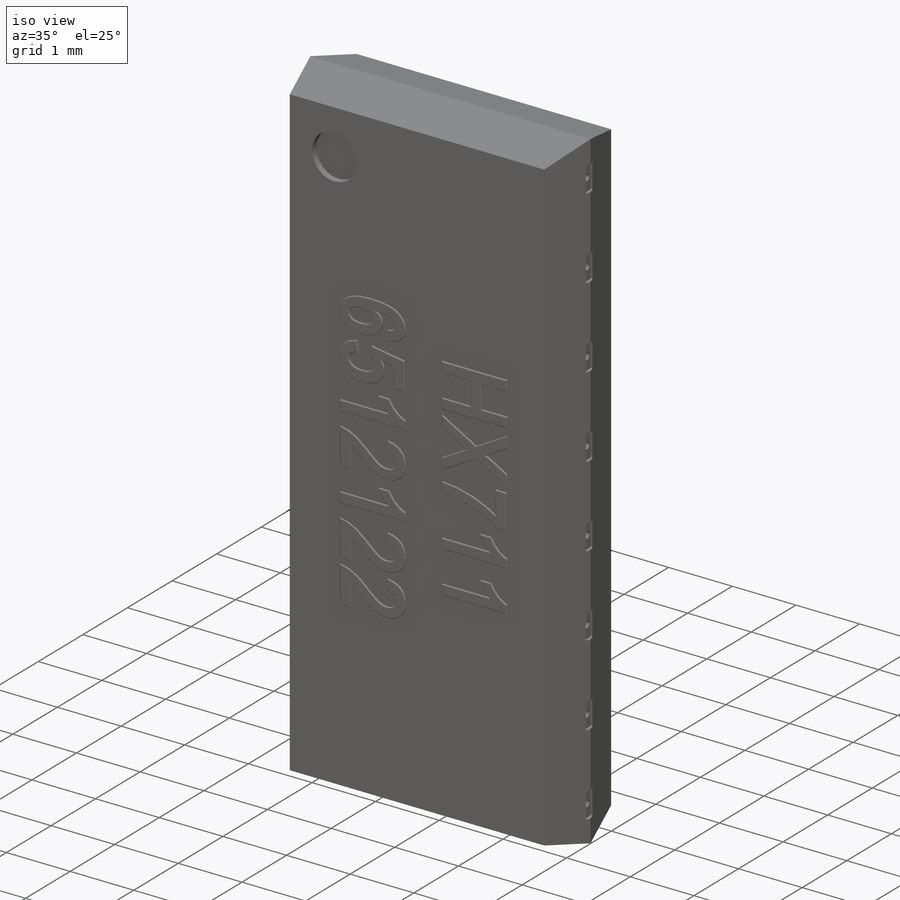
[diagram: iso view]
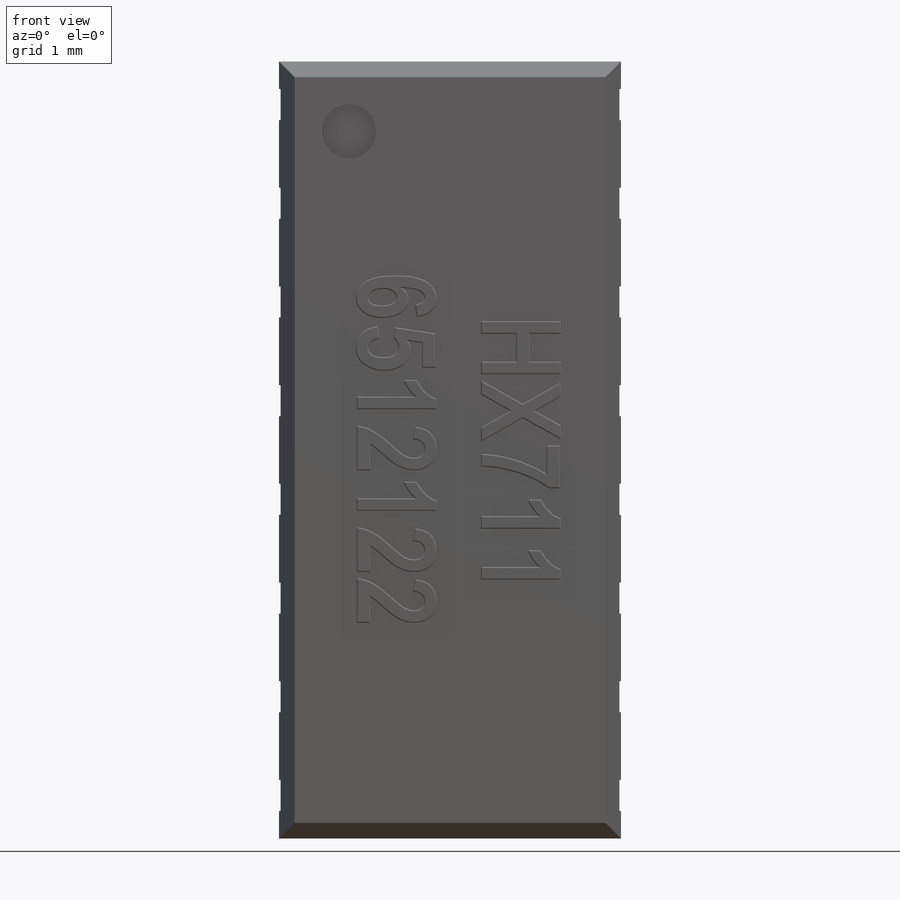
[diagram: front view]
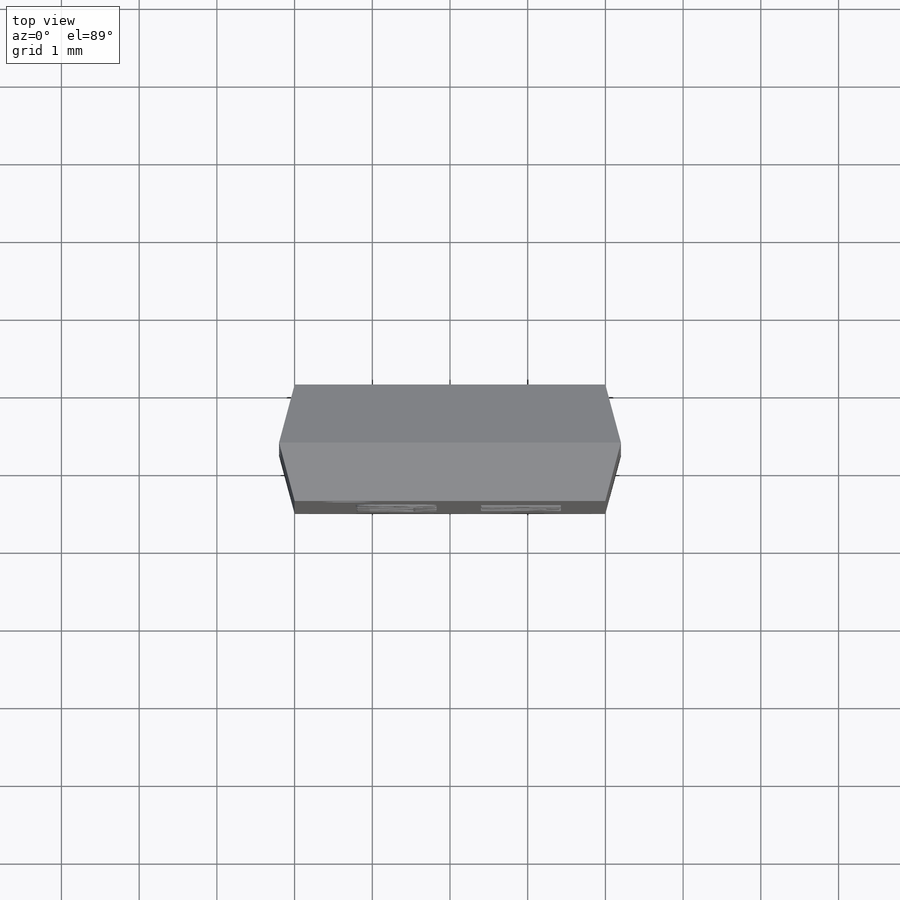
[diagram: top view]
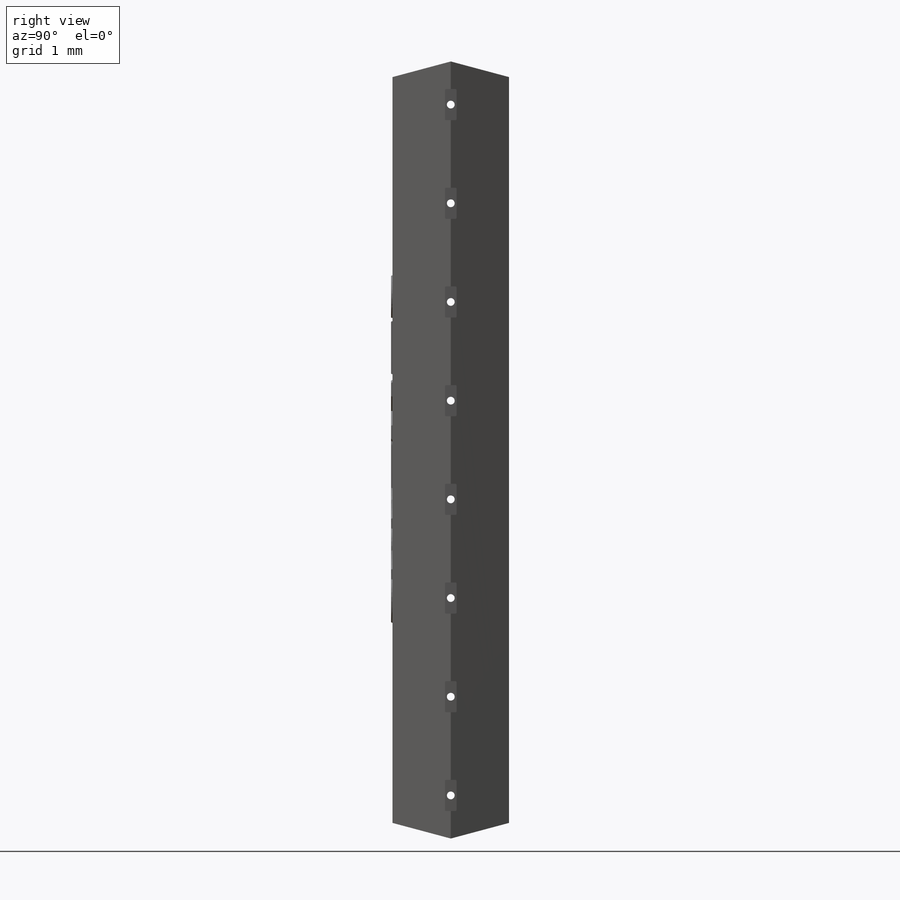
[diagram: right view]
SOLIDWORKS PART (.sldprt)
format: sldprt  version: not decoded by parser v0  size: 1,112,064 bytes
history: native  units: mm
features: plane x6, sketch x6, cut_extrude x4, extrude x2, material x1, fillet x1 (+10 scaffold rows collapsed)
feature tree (30):
  scaffold x10  (default folders/planes/origin — collapsed)
  material  "Borracha de silicone"
  plane  "Plano frontal"
  plane  "Plano superior"
  plane  "Plano direito"
  plane  "Plano5"  Offset=0.75mm
  sketch  "Esboço15"  dims[c1.D5=0.01mm c1.D1=0.7mm c1.D2=0.7mm c1.D3=4.4mm c1.D4=10.0mm c2.D1=10.0mm c2.D2=4.4mm]
  extrude  "Ressalto-extrusão1"  Depth=0.75mm
  sketch  "Esboço17"  dims[D3=0.7mm D1=0.7mm D2=0.7mm]
  cut_extrude  "Corte-extrusão8"  Depth=0.1mm
  sketch  "Esboço18"  dims[D1=0.1mm D3=1.27mm D2=8.0]
  cut_extrude  "Corte-extrusão9"  Depth=0.1mm
  plane  "Plano6"  Offset=2.2mm
  plane  "Plano7"  Offset=2.2mm
  sketch  "Esboço19"  dims[D3=0.015mm D1=0.4mm D2=0.15mm D4=8.0]
  cut_extrude  "Corte-extrusão10"  Depth=0.05mm
  cut_extrude  "Corte-extrusão11"  [1 undecoded]
  sketch  "Esboço19<2>"  dims[D1=0.05mm]
  sketch  "Esboço20"  dims[D1=0.8mm D2=1.6mm D3=3.5mm D4=4.6mm]
  extrude  "Ressalto-extrusão2"  Depth=0.02mm
  fillet  "Filete1"  Radius=0.015mm
decode coverage: 12 of 13 modeling features carry decoded parameters
note: 1 parameter value undecoded
note: suppression state not decoded; provenance and decode notes live in map.json
